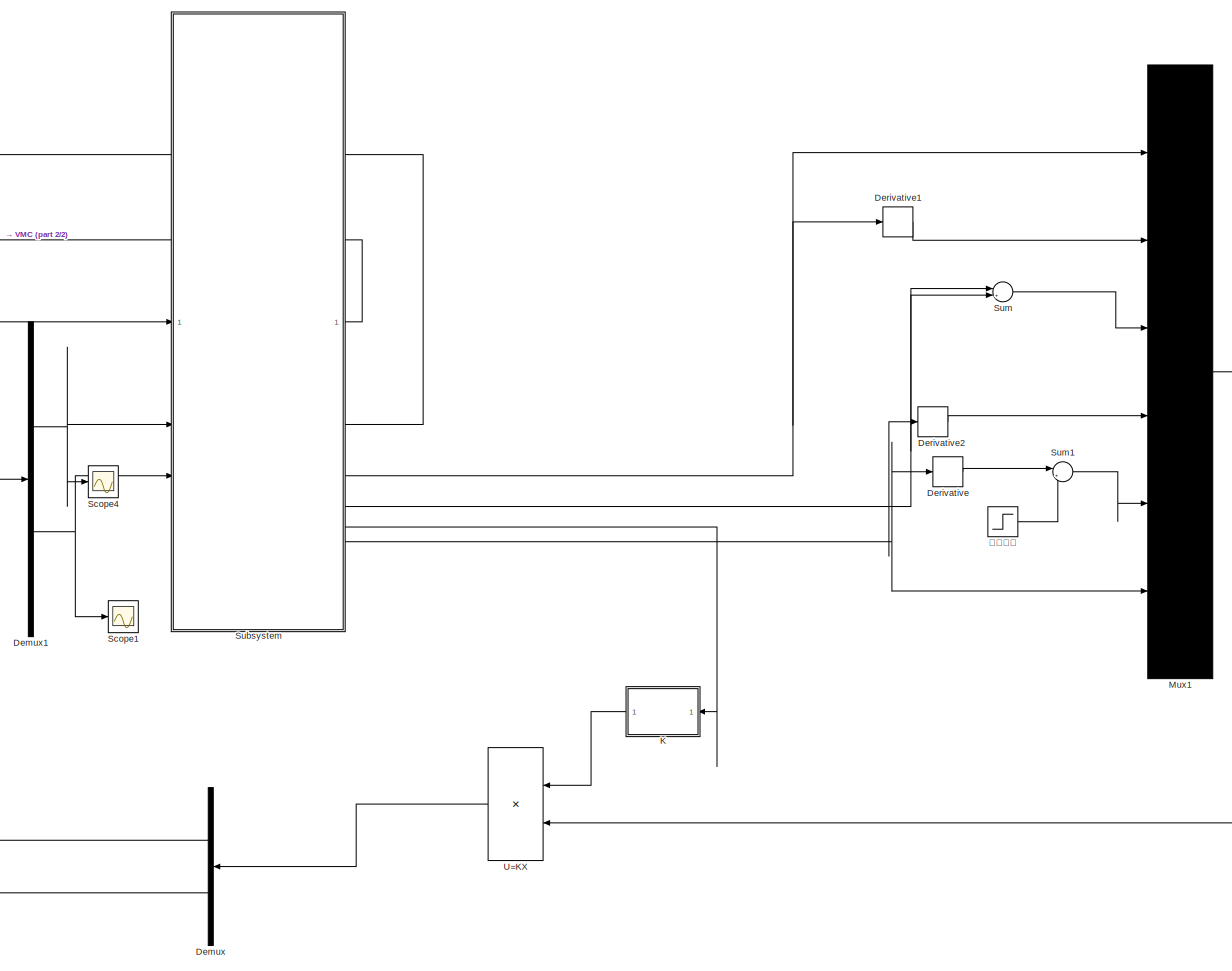
[diagram: root canvas - part 1/2, center side, full height]
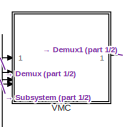
[diagram: root canvas - part 2/2, middle left region]
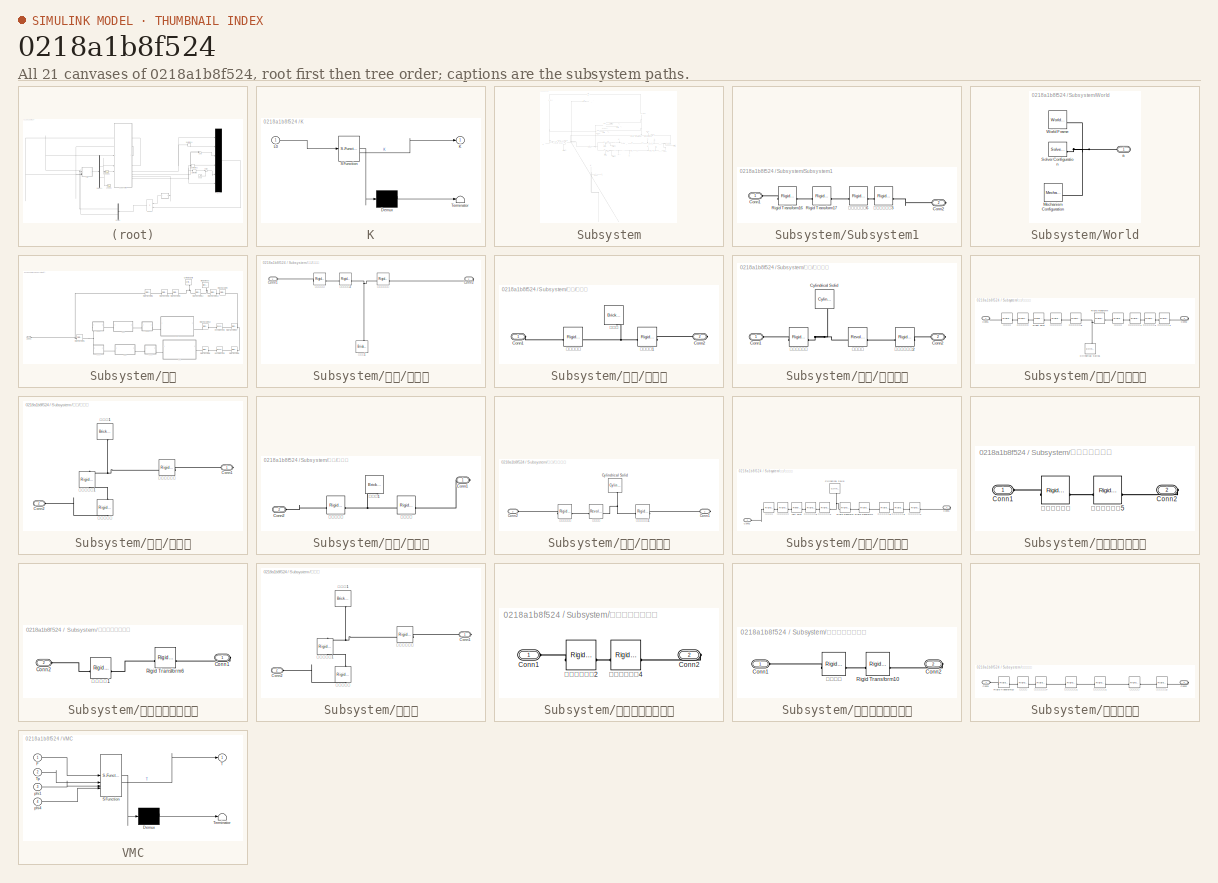
[diagram: thumbnail index - all 21 canvases of the model, root first then tree order]
MODEL slx_0218a1b8f524
KIND model
CONFIG AbsTol = 1e-3
CONFIG EnableMultiTasking = on
CONFIG FixedStep = 0.001
CONFIG MaxStep = auto
CONFIG MinStep = auto
CONFIG RelTol = 1e-3
CONFIG SampleTimeConstraint = Unconstrained
CONFIG SolverName = FixedStepAuto
CONFIG StartTime = 0.0
CONFIG StopTime = 10.0
BLOCK [Demux] Demux
  NameLocation = top
  Outputs = 2
BLOCK [Demux] Demux1
  Outputs = 2
BLOCK [Derivative] Derivative
BLOCK [Derivative] Derivative1
BLOCK [Derivative] Derivative2
BLOCK [SubSystem] K
  ErrorFcn = Stateflow.Translate.translate
  NameLocation = top
  PermitHierarchicalResolution = ExplicitOnly
  SFBlockType = MATLAB Function
  TreatAsAtomicUnit = on
BLOCK [Demux] K/ Demux 
  Outputs = 1
BLOCK [S-Function] K/ SFunction 
  EnableBusSupport = on
  FunctionName = sf_sfun
  PortCounts = [1 2]
  SFcnIsStateOwnerBlock = off
  SFunctionDeploymentMode = off
  Tag = Stateflow S-Function 2
BLOCK [Terminator] K/ Terminator 
BLOCK [Outport] K/K
BLOCK [Inport] K/L0
BLOCK [Mux] Mux1
  DisplayOption = bar
  Inputs = 6
BLOCK [Scope] Scope1
  Floating = off
  NumInputPorts = 1
  ScopeSpecificationString = Simulink.scopes.TimeScopeBlockCfg('CurrentConfiguration', extmgr.ConfigurationSet(extmgr.Configuration('Core','General UI',true),extmgr.Configuration('Core','Source UI',true),extmgr.Configuration('Sources','WiredSimulink',true,'DataLoggingVariableName','ScopeData1'),extmgr.Configuration('Visuals','Time Domain',true,'SerializedDisplays',{struct('MinYLimReal','-1.00000','MaxYLimReal','1.00000','YLab...<+1557ch>
BLOCK [Scope] Scope4
  Floating = off
  NumInputPorts = 1
  ScopeSpecificationString = Simulink.scopes.TimeScopeBlockCfg('CurrentConfiguration', extmgr.ConfigurationSet(extmgr.Configuration('Core','General UI',true),extmgr.Configuration('Core','Source UI',true),extmgr.Configuration('Sources','WiredSimulink',true,'DataLoggingVariableName','ScopeData4'),extmgr.Configuration('Visuals','Time Domain',true,'SerializedDisplays',{struct('MinYLimReal','-72.25518','MaxYLimReal','52.21487','YL...<+1633ch>
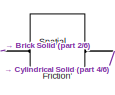
[diagram: Subsystem - part 1/6, top center region]
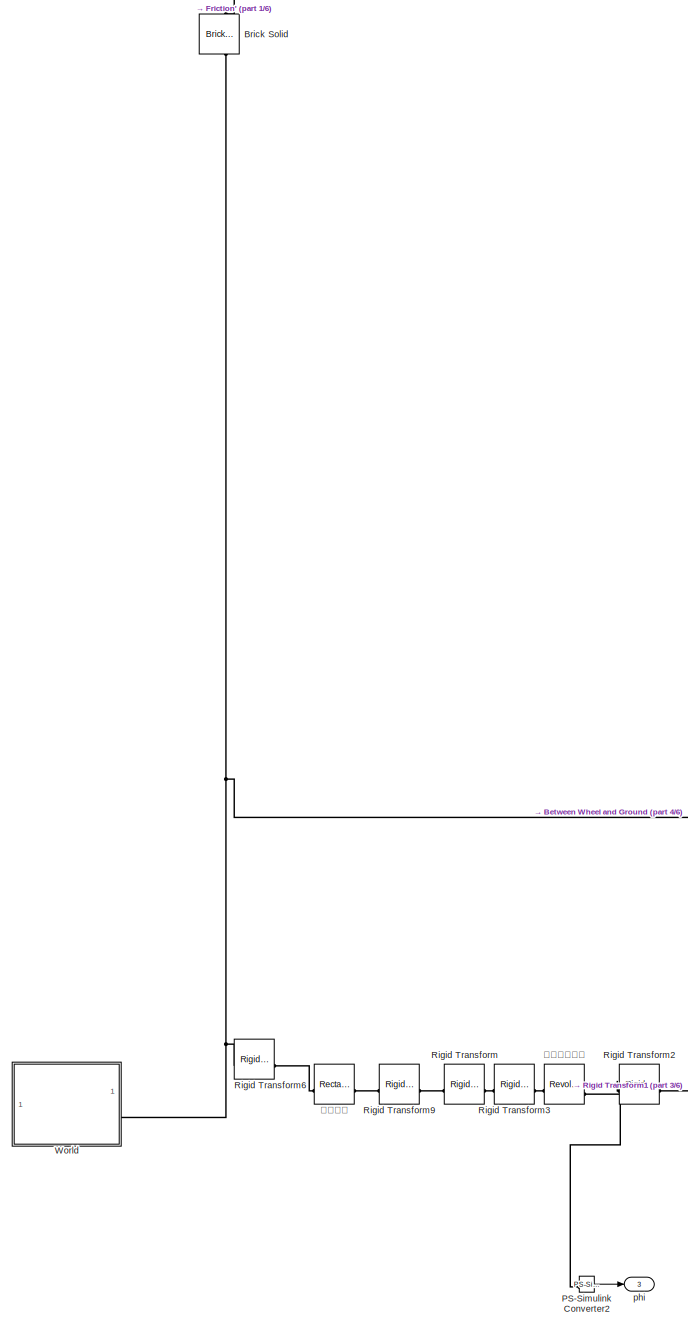
[diagram: Subsystem - part 2/6, top left region]
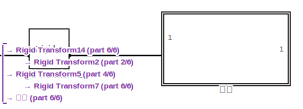
[diagram: Subsystem - part 3/6, top center region]
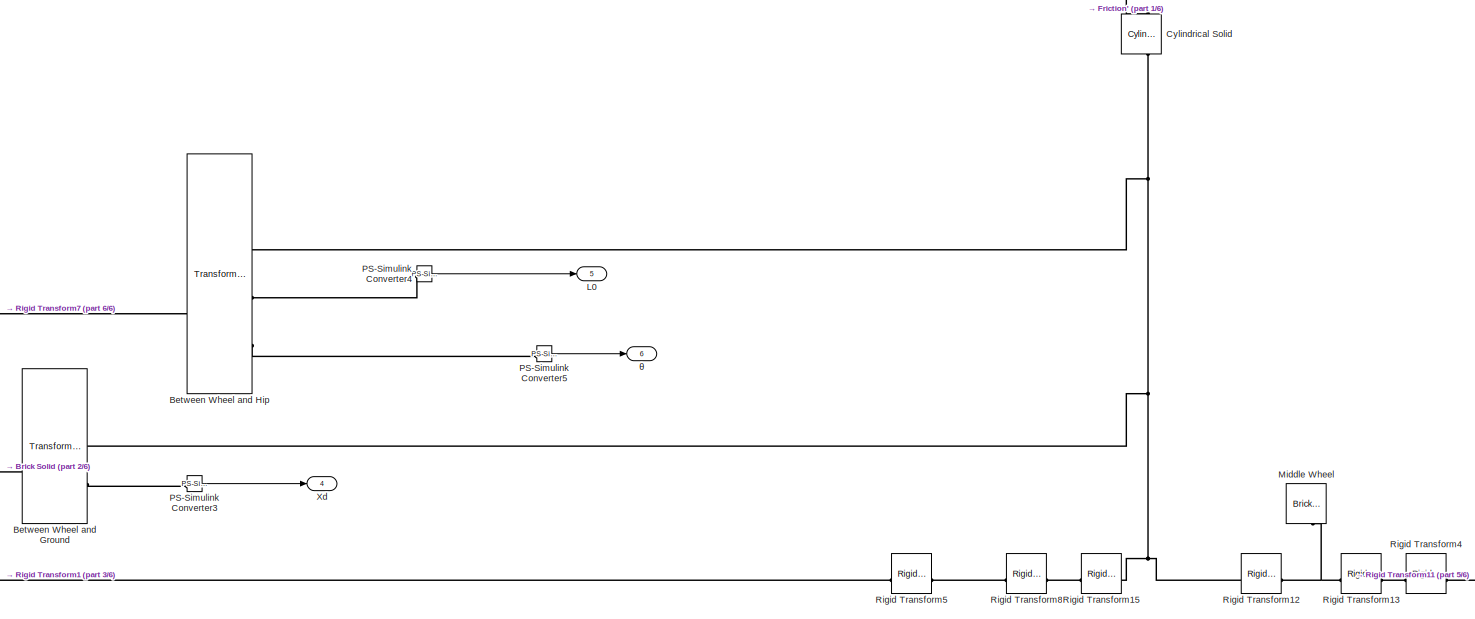
[diagram: Subsystem - part 4/6, top center region]
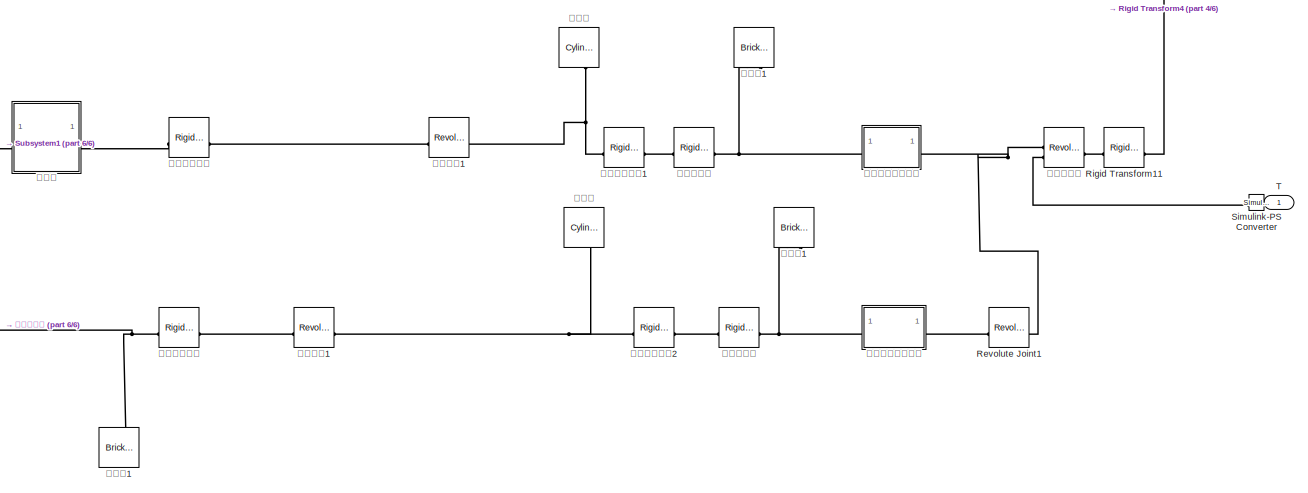
[diagram: Subsystem - part 5/6, middle right region]
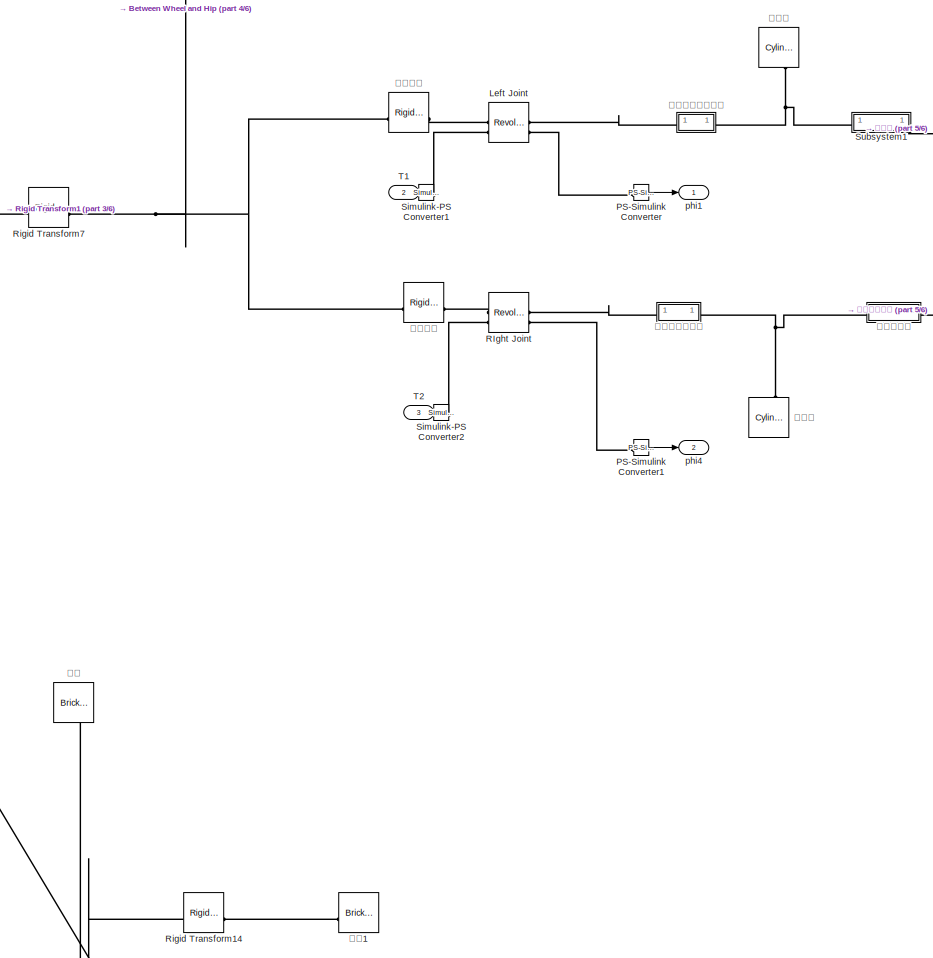
[diagram: Subsystem - part 6/6, central region]
BLOCK [SubSystem] Subsystem
BLOCK [Reference] Subsystem/Between Wheel and Ground  REF=sm_lib/Frames and
Transforms/Transform
Sensor
  SourceBlock = sm_lib/Frames and\nTransforms/Transform\nSensor
  SourceType = Transform\nSensor
BLOCK [Reference] Subsystem/Between Wheel and Hip  REF=sm_lib/Frames and
Transforms/Transform
Sensor
  SourceBlock = sm_lib/Frames and\nTransforms/Transform\nSensor
  SourceType = Transform\nSensor
BLOCK [Reference] Subsystem/Brick Solid  REF=sm_lib/Body Elements/Brick Solid
  NameLocation = left
  SourceBlock = sm_lib/Body Elements/Brick Solid
  SourceType = Brick Solid
BLOCK [Reference] Subsystem/Cylindrical Solid  REF=sm_lib/Body Elements/Cylindrical Solid
  NameLocation = left
  SourceBlock = sm_lib/Body Elements/Cylindrical Solid
  SourceType = Cylindrical Solid
BLOCK [Reference] Subsystem/Friction'  REF=sm_lib/Forces and
Torques/Spatial
Contact Force
  SourceBlock = sm_lib/Forces and\nTorques/Spatial\nContact Force
  SourceType = Spatial\nContact Force
BLOCK [Outport] Subsystem/L0
  Port = 5
BLOCK [Reference] Subsystem/Left Joint  REF=sm_lib/Joints/Revolute Joint
  SourceBlock = sm_lib/Joints/Revolute Joint
  SourceType = Revolute Joint
BLOCK [Reference] Subsystem/Middle Wheel  REF=sm_lib/Body Elements/Brick Solid
  NameLocation = left
  SourceBlock = sm_lib/Body Elements/Brick Solid
  SourceType = Brick Solid
BLOCK [Reference] Subsystem/PS-Simulink Converter  REF=nesl_utility/PS-Simulink
Converter
  SourceBlock = nesl_utility/PS-Simulink\nConverter
  SourceType = PS-Simulink\nConverter
BLOCK [Reference] Subsystem/PS-Simulink Converter1  REF=nesl_utility/PS-Simulink
Converter
  SourceBlock = nesl_utility/PS-Simulink\nConverter
  SourceType = PS-Simulink\nConverter
BLOCK [Reference] Subsystem/PS-Simulink Converter2  REF=nesl_utility/PS-Simulink
Converter
  SourceBlock = nesl_utility/PS-Simulink\nConverter
  SourceType = PS-Simulink\nConverter
BLOCK [Reference] Subsystem/PS-Simulink Converter3  REF=nesl_utility/PS-Simulink
Converter
  SourceBlock = nesl_utility/PS-Simulink\nConverter
  SourceType = PS-Simulink\nConverter
BLOCK [Reference] Subsystem/PS-Simulink Converter4  REF=nesl_utility/PS-Simulink
Converter
  SourceBlock = nesl_utility/PS-Simulink\nConverter
  SourceType = PS-Simulink\nConverter
BLOCK [Reference] Subsystem/PS-Simulink Converter5  REF=nesl_utility/PS-Simulink
Converter
  SourceBlock = nesl_utility/PS-Simulink\nConverter
  SourceType = PS-Simulink\nConverter
BLOCK [Reference] Subsystem/RIght Joint  REF=sm_lib/Joints/Revolute Joint
  SourceBlock = sm_lib/Joints/Revolute Joint
  SourceType = Revolute Joint
BLOCK [Reference] Subsystem/Revolute Joint1  REF=sm_lib/Joints/Revolute Joint
  SourceBlock = sm_lib/Joints/Revolute Joint
  SourceType = Revolute Joint
BLOCK [Reference] Subsystem/Rigid Transform  REF=sm_lib/Frames and
Transforms/Rigid
Transform
  SourceBlock = sm_lib/Frames and\nTransforms/Rigid\nTransform
  SourceType = Rigid\nTransform
BLOCK [Reference] Subsystem/Rigid Transform1  REF=sm_lib/Frames and
Transforms/Rigid
Transform
  SourceBlock = sm_lib/Frames and\nTransforms/Rigid\nTransform
  SourceType = Rigid\nTransform
BLOCK [Reference] Subsystem/Rigid Transform11  REF=sm_lib/Frames and
Transforms/Rigid
Transform
  SourceBlock = sm_lib/Frames and\nTransforms/Rigid\nTransform
  SourceType = Rigid\nTransform
BLOCK [Reference] Subsystem/Rigid Transform12  REF=sm_lib/Frames and
Transforms/Rigid
Transform
  SourceBlock = sm_lib/Frames and\nTransforms/Rigid\nTransform
  SourceType = Rigid\nTransform
BLOCK [Reference] Subsystem/Rigid Transform13  REF=sm_lib/Frames and
Transforms/Rigid
Transform
  SourceBlock = sm_lib/Frames and\nTransforms/Rigid\nTransform
  SourceType = Rigid\nTransform
BLOCK [Reference] Subsystem/Rigid Transform14  REF=sm_lib/Frames and
Transforms/Rigid
Transform
  NameLocation = top
  SourceBlock = sm_lib/Frames and\nTransforms/Rigid\nTransform
  SourceType = Rigid\nTransform
BLOCK [Reference] Subsystem/Rigid Transform15  REF=sm_lib/Frames and
Transforms/Rigid
Transform
  SourceBlock = sm_lib/Frames and\nTransforms/Rigid\nTransform
  SourceType = Rigid\nTransform
BLOCK [Reference] Subsystem/Rigid Transform2  REF=sm_lib/Frames and
Transforms/Rigid
Transform
  SourceBlock = sm_lib/Frames and\nTransforms/Rigid\nTransform
  SourceType = Rigid\nTransform
BLOCK [Reference] Subsystem/Rigid Transform3  REF=sm_lib/Frames and
Transforms/Rigid
Transform
  SourceBlock = sm_lib/Frames and\nTransforms/Rigid\nTransform
  SourceType = Rigid\nTransform
BLOCK [Reference] Subsystem/Rigid Transform4  REF=sm_lib/Frames and
Transforms/Rigid
Transform
  SourceBlock = sm_lib/Frames and\nTransforms/Rigid\nTransform
  SourceType = Rigid\nTransform
BLOCK [Reference] Subsystem/Rigid Transform5  REF=sm_lib/Frames and
Transforms/Rigid
Transform
  SourceBlock = sm_lib/Frames and\nTransforms/Rigid\nTransform
  SourceType = Rigid\nTransform
BLOCK [Reference] Subsystem/Rigid Transform6  REF=sm_lib/Frames and
Transforms/Rigid
Transform
  SourceBlock = sm_lib/Frames and\nTransforms/Rigid\nTransform
  SourceType = Rigid\nTransform
BLOCK [Reference] Subsystem/Rigid Transform7  REF=sm_lib/Frames and
Transforms/Rigid
Transform
  SourceBlock = sm_lib/Frames and\nTransforms/Rigid\nTransform
  SourceType = Rigid\nTransform
BLOCK [Reference] Subsystem/Rigid Transform8  REF=sm_lib/Frames and
Transforms/Rigid
Transform
  SourceBlock = sm_lib/Frames and\nTransforms/Rigid\nTransform
  SourceType = Rigid\nTransform
BLOCK [Reference] Subsystem/Rigid Transform9  REF=sm_lib/Frames and
Transforms/Rigid
Transform
  SourceBlock = sm_lib/Frames and\nTransforms/Rigid\nTransform
  SourceType = Rigid\nTransform
BLOCK [Reference] Subsystem/Simulink-PS Converter  REF=nesl_utility/Simulink-PS
Converter
  NameLocation = top
  SourceBlock = nesl_utility/Simulink-PS\nConverter
  SourceType = Simulink-PS\nConverter
BLOCK [Reference] Subsystem/Simulink-PS Converter1  REF=nesl_utility/Simulink-PS
Converter
  SourceBlock = nesl_utility/Simulink-PS\nConverter
  SourceType = Simulink-PS\nConverter
BLOCK [Reference] Subsystem/Simulink-PS Converter2  REF=nesl_utility/Simulink-PS
Converter
  SourceBlock = nesl_utility/Simulink-PS\nConverter
  SourceType = Simulink-PS\nConverter
BLOCK [SubSystem] Subsystem/Subsystem1
  NameLocation = right
BLOCK [PMIOPort] Subsystem/Subsystem1/Conn1
  Side = Left
BLOCK [PMIOPort] Subsystem/Subsystem1/Conn2
  Port = 2
  Side = Right
BLOCK [Reference] Subsystem/Subsystem1/Rigid Transform16  REF=sm_lib/Frames and
Transforms/Rigid
Transform
  SourceBlock = sm_lib/Frames and\nTransforms/Rigid\nTransform
  SourceType = Rigid\nTransform
BLOCK [Reference] Subsystem/Subsystem1/Rigid Transform17  REF=sm_lib/Frames and
Transforms/Rigid
Transform
  SourceBlock = sm_lib/Frames and\nTransforms/Rigid\nTransform
  SourceType = Rigid\nTransform
BLOCK [Reference] Subsystem/Subsystem1/关节骨头位置3  REF=sm_lib/Frames and
Transforms/Rigid
Transform
  NameLocation = right
  SourceBlock = sm_lib/Frames and\nTransforms/Rigid\nTransform
  SourceType = Rigid\nTransform
BLOCK [Reference] Subsystem/Subsystem1/关节骨头位置6  REF=sm_lib/Frames and
Transforms/Rigid
Transform
  SourceBlock = sm_lib/Frames and\nTransforms/Rigid\nTransform
  SourceType = Rigid\nTransform
BLOCK [Inport] Subsystem/T
  NameLocation = top
BLOCK [Inport] Subsystem/T1
  Port = 2
BLOCK [Inport] Subsystem/T2
  Port = 3
BLOCK [SubSystem] Subsystem/World
BLOCK [Reference] Subsystem/World/Mechanism Configuration  REF=sm_lib/Utilities/Mechanism
Configuration
  SourceBlock = sm_lib/Utilities/Mechanism\nConfiguration
  SourceType = Mechanism\nConfiguration
BLOCK [Reference] Subsystem/World/Solver Configuration  REF=nesl_utility/Solver
Configuration
  SourceBlock = nesl_utility/Solver\nConfiguration
  SourceType = Solver\nConfiguration
BLOCK [Reference] Subsystem/World/World Frame  REF=sm_lib/Frames and
Transforms/World Frame
  SourceBlock = sm_lib/Frames and\nTransforms/World Frame
  SourceType = World Frame
BLOCK [PMIOPort] Subsystem/World/a
  Side = Right
BLOCK [Outport] Subsystem/Xd
  Port = 4
BLOCK [Outport] Subsystem/phi
  Port = 3
BLOCK [Outport] Subsystem/phi1
BLOCK [Outport] Subsystem/phi4
  Port = 2
BLOCK [Outport] Subsystem/θ
  Port = 6
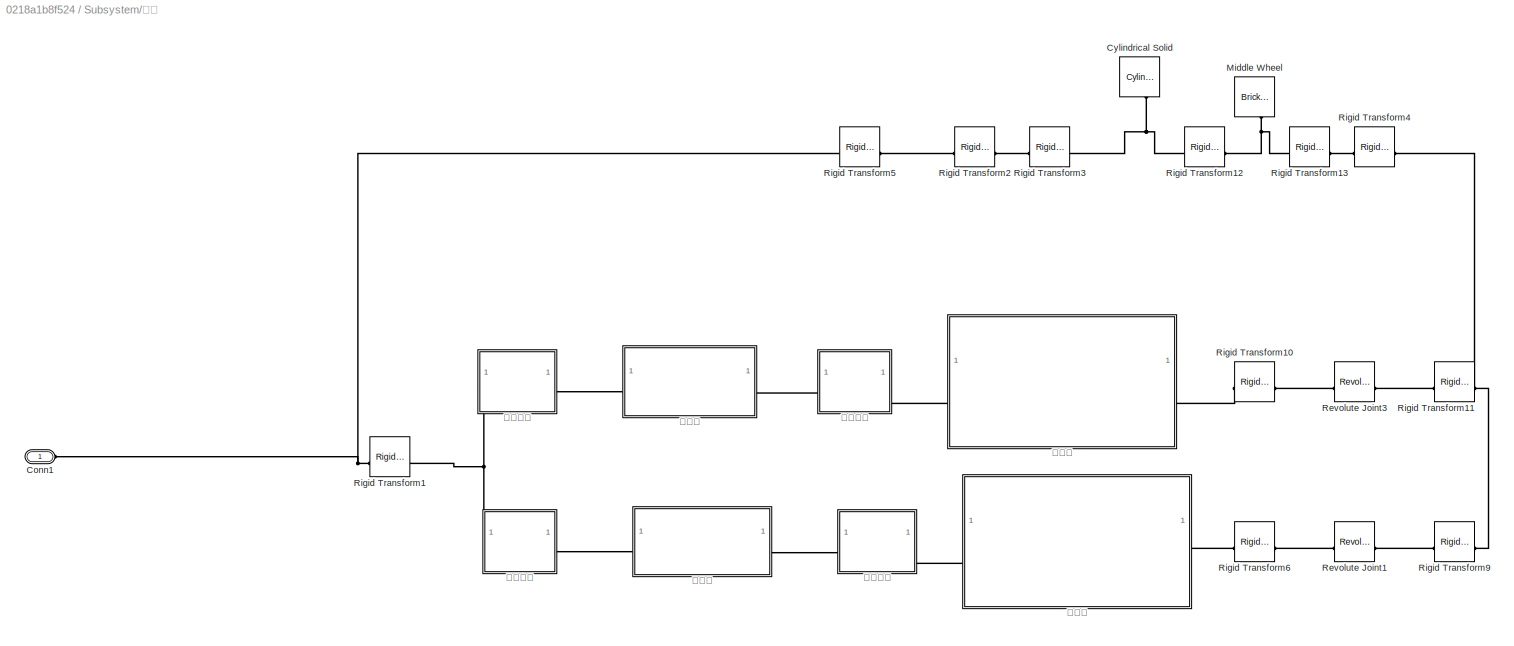
BLOCK [SubSystem] Subsystem/前腿
BLOCK [PMIOPort] Subsystem/前腿/Conn1
  Side = Left
BLOCK [Reference] Subsystem/前腿/Cylindrical Solid  REF=sm_lib/Body Elements/Cylindrical Solid
  NameLocation = left
  SourceBlock = sm_lib/Body Elements/Cylindrical Solid
  SourceType = Cylindrical Solid
BLOCK [Reference] Subsystem/前腿/Middle Wheel  REF=sm_lib/Body Elements/Brick Solid
  NameLocation = left
  SourceBlock = sm_lib/Body Elements/Brick Solid
  SourceType = Brick Solid
BLOCK [Reference] Subsystem/前腿/Revolute Joint1  REF=sm_lib/Joints/Revolute Joint
  SourceBlock = sm_lib/Joints/Revolute Joint
  SourceType = Revolute Joint
BLOCK [Reference] Subsystem/前腿/Revolute Joint3  REF=sm_lib/Joints/Revolute Joint
  SourceBlock = sm_lib/Joints/Revolute Joint
  SourceType = Revolute Joint
BLOCK [Reference] Subsystem/前腿/Rigid Transform1  REF=sm_lib/Frames and
Transforms/Rigid
Transform
  SourceBlock = sm_lib/Frames and\nTransforms/Rigid\nTransform
  SourceType = Rigid\nTransform
BLOCK [Reference] Subsystem/前腿/Rigid Transform10  REF=sm_lib/Frames and
Transforms/Rigid
Transform
  SourceBlock = sm_lib/Frames and\nTransforms/Rigid\nTransform
  SourceType = Rigid\nTransform
BLOCK [Reference] Subsystem/前腿/Rigid Transform11  REF=sm_lib/Frames and
Transforms/Rigid
Transform
  SourceBlock = sm_lib/Frames and\nTransforms/Rigid\nTransform
  SourceType = Rigid\nTransform
BLOCK [Reference] Subsystem/前腿/Rigid Transform12  REF=sm_lib/Frames and
Transforms/Rigid
Transform
  SourceBlock = sm_lib/Frames and\nTransforms/Rigid\nTransform
  SourceType = Rigid\nTransform
BLOCK [Reference] Subsystem/前腿/Rigid Transform13  REF=sm_lib/Frames and
Transforms/Rigid
Transform
  SourceBlock = sm_lib/Frames and\nTransforms/Rigid\nTransform
  SourceType = Rigid\nTransform
BLOCK [Reference] Subsystem/前腿/Rigid Transform2  REF=sm_lib/Frames and
Transforms/Rigid
Transform
  SourceBlock = sm_lib/Frames and\nTransforms/Rigid\nTransform
  SourceType = Rigid\nTransform
BLOCK [Reference] Subsystem/前腿/Rigid Transform3  REF=sm_lib/Frames and
Transforms/Rigid
Transform
  SourceBlock = sm_lib/Frames and\nTransforms/Rigid\nTransform
  SourceType = Rigid\nTransform
BLOCK [Reference] Subsystem/前腿/Rigid Transform4  REF=sm_lib/Frames and
Transforms/Rigid
Transform
  SourceBlock = sm_lib/Frames and\nTransforms/Rigid\nTransform
  SourceType = Rigid\nTransform
BLOCK [Reference] Subsystem/前腿/Rigid Transform5  REF=sm_lib/Frames and
Transforms/Rigid
Transform
  SourceBlock = sm_lib/Frames and\nTransforms/Rigid\nTransform
  SourceType = Rigid\nTransform
BLOCK [Reference] Subsystem/前腿/Rigid Transform6  REF=sm_lib/Frames and
Transforms/Rigid
Transform
  SourceBlock = sm_lib/Frames and\nTransforms/Rigid\nTransform
  SourceType = Rigid\nTransform
BLOCK [Reference] Subsystem/前腿/Rigid Transform9  REF=sm_lib/Frames and
Transforms/Rigid
Transform
  SourceBlock = sm_lib/Frames and\nTransforms/Rigid\nTransform
  SourceType = Rigid\nTransform
BLOCK [SubSystem] Subsystem/前腿/右大腿
BLOCK [PMIOPort] Subsystem/前腿/右大腿/Conn1
  Side = Left
BLOCK [PMIOPort] Subsystem/前腿/右大腿/Conn2
  Port = 2
  Side = Right
BLOCK [Reference] Subsystem/前腿/右大腿/右大腿1  REF=sm_lib/Body Elements/Brick Solid
  NameLocation = right
  SourceBlock = sm_lib/Body Elements/Brick Solid
  SourceType = Brick Solid
BLOCK [Reference] Subsystem/前腿/右大腿/右大腿位置  REF=sm_lib/Frames and
Transforms/Rigid
Transform
  SourceBlock = sm_lib/Frames and\nTransforms/Rigid\nTransform
  SourceType = Rigid\nTransform
BLOCK [Reference] Subsystem/前腿/右大腿/右膝关节位置  REF=sm_lib/Frames and
Transforms/Rigid
Transform
  NameLocation = right
  SourceBlock = sm_lib/Frames and\nTransforms/Rigid\nTransform
  SourceType = Rigid\nTransform
BLOCK [Reference] Subsystem/前腿/右大腿/左大腿位置2  REF=sm_lib/Frames and
Transforms/Rigid
Transform
  SourceBlock = sm_lib/Frames and\nTransforms/Rigid\nTransform
  SourceType = Rigid\nTransform
BLOCK [SubSystem] Subsystem/前腿/右小腿
BLOCK [PMIOPort] Subsystem/前腿/右小腿/Conn1
  Side = Left
BLOCK [PMIOPort] Subsystem/前腿/右小腿/Conn2
  Port = 2
  Side = Right
BLOCK [Reference] Subsystem/前腿/右小腿/右小腿  REF=sm_lib/Body Elements/Brick Solid
  NameLocation = left
  SourceBlock = sm_lib/Body Elements/Brick Solid
  SourceType = Brick Solid
BLOCK [Reference] Subsystem/前腿/右小腿/右小腿末1  REF=sm_lib/Frames and
Transforms/Rigid
Transform
  SourceBlock = sm_lib/Frames and\nTransforms/Rigid\nTransform
  SourceType = Rigid\nTransform
BLOCK [Reference] Subsystem/前腿/右小腿/右小腿质心  REF=sm_lib/Frames and
Transforms/Rigid
Transform
  SourceBlock = sm_lib/Frames and\nTransforms/Rigid\nTransform
  SourceType = Rigid\nTransform
BLOCK [SubSystem] Subsystem/前腿/右膝关节
BLOCK [PMIOPort] Subsystem/前腿/右膝关节/Conn1
  Side = Left
BLOCK [PMIOPort] Subsystem/前腿/右膝关节/Conn2
  Port = 2
  Side = Right
BLOCK [Reference] Subsystem/前腿/右膝关节/Cylindrical Solid  REF=sm_lib/Body Elements/Cylindrical Solid
  NameLocation = left
  SourceBlock = sm_lib/Body Elements/Cylindrical Solid
  SourceType = Cylindrical Solid
BLOCK [Reference] Subsystem/前腿/右膝关节/右膝关节  REF=sm_lib/Joints/Revolute Joint
  SourceBlock = sm_lib/Joints/Revolute Joint
  SourceType = Revolute Joint
BLOCK [Reference] Subsystem/前腿/右膝关节/坐标轴变换右2  REF=sm_lib/Frames and
Transforms/Rigid
Transform
  SourceBlock = sm_lib/Frames and\nTransforms/Rigid\nTransform
  SourceType = Rigid\nTransform
BLOCK [Reference] Subsystem/前腿/右膝关节/旋转右坐标轴  REF=sm_lib/Frames and
Transforms/Rigid
Transform
  SourceBlock = sm_lib/Frames and\nTransforms/Rigid\nTransform
  SourceType = Rigid\nTransform
BLOCK [SubSystem] Subsystem/前腿/右髋关节
BLOCK [PMIOPort] Subsystem/前腿/右髋关节/Conn1
  Side = Left
BLOCK [PMIOPort] Subsystem/前腿/右髋关节/Conn2
  Port = 2
  Side = Right
BLOCK [Reference] Subsystem/前腿/右髋关节/Cylindrical Solid1  REF=sm_lib/Body Elements/Cylindrical Solid
  NameLocation = right
  SourceBlock = sm_lib/Body Elements/Cylindrical Solid
  SourceType = Cylindrical Solid
BLOCK [Reference] Subsystem/前腿/右髋关节/RIght Joint  REF=sm_lib/Joints/Revolute Joint
  SourceBlock = sm_lib/Joints/Revolute Joint
  SourceType = Revolute Joint
BLOCK [Reference] Subsystem/前腿/右髋关节/Rigid Transform  REF=sm_lib/Frames and
Transforms/Rigid
Transform
  SourceBlock = sm_lib/Frames and\nTransforms/Rigid\nTransform
  SourceType = Rigid\nTransform
BLOCK [Reference] Subsystem/前腿/右髋关节/关节骨头位置  REF=sm_lib/Frames and
Transforms/Rigid
Transform
  SourceBlock = sm_lib/Frames and\nTransforms/Rigid\nTransform
  SourceType = Rigid\nTransform
BLOCK [Reference] Subsystem/前腿/右髋关节/关节骨头位置1  REF=sm_lib/Frames and
Transforms/Rigid
Transform
  SourceBlock = sm_lib/Frames and\nTransforms/Rigid\nTransform
  SourceType = Rigid\nTransform
BLOCK [Reference] Subsystem/前腿/右髋关节/关节骨头位置5  REF=sm_lib/Frames and
Transforms/Rigid
Transform
  SourceBlock = sm_lib/Frames and\nTransforms/Rigid\nTransform
  SourceType = Rigid\nTransform
BLOCK [Reference] Subsystem/前腿/右髋关节/关节骨头位置7  REF=sm_lib/Frames and
Transforms/Rigid
Transform
  SourceBlock = sm_lib/Frames and\nTransforms/Rigid\nTransform
  SourceType = Rigid\nTransform
BLOCK [Reference] Subsystem/前腿/右髋关节/右髋位置  REF=sm_lib/Frames and
Transforms/Rigid
Transform
  SourceBlock = sm_lib/Frames and\nTransforms/Rigid\nTransform
  SourceType = Rigid\nTransform
BLOCK [Reference] Subsystem/前腿/右髋关节/向前移动  REF=sm_lib/Frames and
Transforms/Rigid
Transform
  SourceBlock = sm_lib/Frames and\nTransforms/Rigid\nTransform
  SourceType = Rigid\nTransform
BLOCK [Reference] Subsystem/前腿/右髋关节/坐标轴变换右  REF=sm_lib/Frames and
Transforms/Rigid
Transform
  SourceBlock = sm_lib/Frames and\nTransforms/Rigid\nTransform
  SourceType = Rigid\nTransform
BLOCK [Reference] Subsystem/前腿/右髋关节/坐标轴变换右1  REF=sm_lib/Frames and
Transforms/Rigid
Transform
  SourceBlock = sm_lib/Frames and\nTransforms/Rigid\nTransform
  SourceType = Rigid\nTransform
BLOCK [SubSystem] Subsystem/前腿/左大腿
BLOCK [PMIOPort] Subsystem/前腿/左大腿/Conn1
  Side = Right
BLOCK [PMIOPort] Subsystem/前腿/左大腿/Conn2
  Port = 2
  Side = Left
BLOCK [Reference] Subsystem/前腿/左大腿/左大腿1  REF=sm_lib/Body Elements/Brick Solid
  NameLocation = left
  SourceBlock = sm_lib/Body Elements/Brick Solid
  SourceType = Brick Solid
BLOCK [Reference] Subsystem/前腿/左大腿/左大腿位置  REF=sm_lib/Frames and
Transforms/Rigid
Transform
  NameLocation = right
  SourceBlock = sm_lib/Frames and\nTransforms/Rigid\nTransform
  SourceType = Rigid\nTransform
BLOCK [Reference] Subsystem/前腿/左大腿/左大腿位置1  REF=sm_lib/Frames and
Transforms/Rigid
Transform
  NameLocation = right
  SourceBlock = sm_lib/Frames and\nTransforms/Rigid\nTransform
  SourceType = Rigid\nTransform
BLOCK [Reference] Subsystem/前腿/左大腿/左膝关节位置  REF=sm_lib/Frames and
Transforms/Rigid
Transform
  SourceBlock = sm_lib/Frames and\nTransforms/Rigid\nTransform
  SourceType = Rigid\nTransform
BLOCK [SubSystem] Subsystem/前腿/左小腿
BLOCK [PMIOPort] Subsystem/前腿/左小腿/Conn1
  Side = Right
BLOCK [PMIOPort] Subsystem/前腿/左小腿/Conn2
  Port = 2
  Side = Left
BLOCK [Reference] Subsystem/前腿/左小腿/左小腿1  REF=sm_lib/Body Elements/Brick Solid
  NameLocation = left
  SourceBlock = sm_lib/Body Elements/Brick Solid
  SourceType = Brick Solid
BLOCK [Reference] Subsystem/前腿/左小腿/左小腿末  REF=sm_lib/Frames and
Transforms/Rigid
Transform
  SourceBlock = sm_lib/Frames and\nTransforms/Rigid\nTransform
  SourceType = Rigid\nTransform
BLOCK [Reference] Subsystem/前腿/左小腿/左小腿质心  REF=sm_lib/Frames and
Transforms/Rigid
Transform
  SourceBlock = sm_lib/Frames and\nTransforms/Rigid\nTransform
  SourceType = Rigid\nTransform
BLOCK [SubSystem] Subsystem/前腿/左膝关节
BLOCK [PMIOPort] Subsystem/前腿/左膝关节/Conn1
  Side = Right
BLOCK [PMIOPort] Subsystem/前腿/左膝关节/Conn2
  Port = 2
  Side = Left
BLOCK [Reference] Subsystem/前腿/左膝关节/Cylindrical Solid  REF=sm_lib/Body Elements/Cylindrical Solid
  NameLocation = left
  SourceBlock = sm_lib/Body Elements/Cylindrical Solid
  SourceType = Cylindrical Solid
BLOCK [Reference] Subsystem/前腿/左膝关节/坐标轴变换左1  REF=sm_lib/Frames and
Transforms/Rigid
Transform
  SourceBlock = sm_lib/Frames and\nTransforms/Rigid\nTransform
  SourceType = Rigid\nTransform
BLOCK [Reference] Subsystem/前腿/左膝关节/左膝关节  REF=sm_lib/Joints/Revolute Joint
  SourceBlock = sm_lib/Joints/Revolute Joint
  SourceType = Revolute Joint
BLOCK [Reference] Subsystem/前腿/左膝关节/旋转左坐标轴  REF=sm_lib/Frames and
Transforms/Rigid
Transform
  SourceBlock = sm_lib/Frames and\nTransforms/Rigid\nTransform
  SourceType = Rigid\nTransform
BLOCK [SubSystem] Subsystem/前腿/左髋关节
BLOCK [PMIOPort] Subsystem/前腿/左髋关节/Conn1
  Side = Right
BLOCK [PMIOPort] Subsystem/前腿/左髋关节/Conn2
  Port = 2
  Side = Left
BLOCK [Reference] Subsystem/前腿/左髋关节/Cylindrical Solid  REF=sm_lib/Body Elements/Cylindrical Solid
  NameLocation = left
  SourceBlock = sm_lib/Body Elements/Cylindrical Solid
  SourceType = Cylindrical Solid
BLOCK [Reference] Subsystem/前腿/左髋关节/Left Joint  REF=sm_lib/Joints/Revolute Joint
  SourceBlock = sm_lib/Joints/Revolute Joint
  SourceType = Revolute Joint
BLOCK [Reference] Subsystem/前腿/左髋关节/Rigid Transform  REF=sm_lib/Frames and
Transforms/Rigid
Transform
  SourceBlock = sm_lib/Frames and\nTransforms/Rigid\nTransform
  SourceType = Rigid\nTransform
BLOCK [Reference] Subsystem/前腿/左髋关节/Rigid Transform1  REF=sm_lib/Frames and
Transforms/Rigid
Transform
  SourceBlock = sm_lib/Frames and\nTransforms/Rigid\nTransform
  SourceType = Rigid\nTransform
BLOCK [Reference] Subsystem/前腿/左髋关节/关节骨头位置2  REF=sm_lib/Frames and
Transforms/Rigid
Transform
  SourceBlock = sm_lib/Frames and\nTransforms/Rigid\nTransform
  SourceType = Rigid\nTransform
BLOCK [Reference] Subsystem/前腿/左髋关节/关节骨头位置3  REF=sm_lib/Frames and
Transforms/Rigid
Transform
  SourceBlock = sm_lib/Frames and\nTransforms/Rigid\nTransform
  SourceType = Rigid\nTransform
BLOCK [Reference] Subsystem/前腿/左髋关节/关节骨头位置4  REF=sm_lib/Frames and
Transforms/Rigid
Transform
  SourceBlock = sm_lib/Frames and\nTransforms/Rigid\nTransform
  SourceType = Rigid\nTransform
BLOCK [Reference] Subsystem/前腿/左髋关节/关节骨头位置6  REF=sm_lib/Frames and
Transforms/Rigid
Transform
  SourceBlock = sm_lib/Frames and\nTransforms/Rigid\nTransform
  SourceType = Rigid\nTransform
BLOCK [Reference] Subsystem/前腿/左髋关节/坐标轴变换左  REF=sm_lib/Frames and
Transforms/Rigid
Transform
  SourceBlock = sm_lib/Frames and\nTransforms/Rigid\nTransform
  SourceType = Rigid\nTransform
BLOCK [Reference] Subsystem/前腿/左髋关节/坐标轴变换左1  REF=sm_lib/Frames and
Transforms/Rigid
Transform
  SourceBlock = sm_lib/Frames and\nTransforms/Rigid\nTransform
  SourceType = Rigid\nTransform
BLOCK [Reference] Subsystem/前腿/左髋关节/左髋位置  REF=sm_lib/Frames and
Transforms/Rigid
Transform
  SourceBlock = sm_lib/Frames and\nTransforms/Rigid\nTransform
  SourceType = Rigid\nTransform
BLOCK [Reference] Subsystem/前腿足关节  REF=sm_lib/Joints/Revolute Joint
  SourceBlock = sm_lib/Joints/Revolute Joint
  SourceType = Revolute Joint
BLOCK [Reference] Subsystem/右大腿1  REF=sm_lib/Body Elements/Brick Solid
  NameLocation = right
  SourceBlock = sm_lib/Body Elements/Brick Solid
  SourceType = Brick Solid
BLOCK [Reference] Subsystem/右小腿1  REF=sm_lib/Body Elements/Brick Solid
  NameLocation = left
  SourceBlock = sm_lib/Body Elements/Brick Solid
  SourceType = Brick Solid
BLOCK [Reference] Subsystem/右小腿质心  REF=sm_lib/Frames and
Transforms/Rigid
Transform
  SourceBlock = sm_lib/Frames and\nTransforms/Rigid\nTransform
  SourceType = Rigid\nTransform
BLOCK [Reference] Subsystem/右胯骨  REF=sm_lib/Body Elements/Cylindrical Solid
  NameLocation = right
  SourceBlock = sm_lib/Body Elements/Cylindrical Solid
  SourceType = Cylindrical Solid
BLOCK [SubSystem] Subsystem/右胯骨位置变化
BLOCK [PMIOPort] Subsystem/右胯骨位置变化/Conn1
  Side = Left
BLOCK [PMIOPort] Subsystem/右胯骨位置变化/Conn2
  Port = 2
  Side = Right
BLOCK [Reference] Subsystem/右胯骨位置变化/关节骨头位置  REF=sm_lib/Frames and
Transforms/Rigid
Transform
  SourceBlock = sm_lib/Frames and\nTransforms/Rigid\nTransform
  SourceType = Rigid\nTransform
BLOCK [Reference] Subsystem/右胯骨位置变化/关节骨头位置5  REF=sm_lib/Frames and
Transforms/Rigid
Transform
  SourceBlock = sm_lib/Frames and\nTransforms/Rigid\nTransform
  SourceType = Rigid\nTransform
BLOCK [Reference] Subsystem/右膝关节1  REF=sm_lib/Joints/Revolute Joint
  SourceBlock = sm_lib/Joints/Revolute Joint
  SourceType = Revolute Joint
BLOCK [Reference] Subsystem/右膝关节位置  REF=sm_lib/Frames and
Transforms/Rigid
Transform
  NameLocation = right
  SourceBlock = sm_lib/Frames and\nTransforms/Rigid\nTransform
  SourceType = Rigid\nTransform
BLOCK [Reference] Subsystem/右膝骨  REF=sm_lib/Body Elements/Cylindrical Solid
  NameLocation = left
  SourceBlock = sm_lib/Body Elements/Cylindrical Solid
  SourceType = Cylindrical Solid
BLOCK [SubSystem] Subsystem/右足关节位置变化
BLOCK [PMIOPort] Subsystem/右足关节位置变化/Conn1
  Side = Right
BLOCK [PMIOPort] Subsystem/右足关节位置变化/Conn2
  Port = 2
  Side = Left
BLOCK [Reference] Subsystem/右足关节位置变化/Rigid Transform6  REF=sm_lib/Frames and
Transforms/Rigid
Transform
  SourceBlock = sm_lib/Frames and\nTransforms/Rigid\nTransform
  SourceType = Rigid\nTransform
BLOCK [Reference] Subsystem/右足关节位置变化/右小腿末1  REF=sm_lib/Frames and
Transforms/Rigid
Transform
  SourceBlock = sm_lib/Frames and\nTransforms/Rigid\nTransform
  SourceType = Rigid\nTransform
BLOCK [Reference] Subsystem/右髋位置  REF=sm_lib/Frames and
Transforms/Rigid
Transform
  SourceBlock = sm_lib/Frames and\nTransforms/Rigid\nTransform
  SourceType = Rigid\nTransform
BLOCK [Reference] Subsystem/坐标轴变换右2  REF=sm_lib/Frames and
Transforms/Rigid
Transform
  SourceBlock = sm_lib/Frames and\nTransforms/Rigid\nTransform
  SourceType = Rigid\nTransform
BLOCK [Reference] Subsystem/坐标轴变换左1  REF=sm_lib/Frames and
Transforms/Rigid
Transform
  SourceBlock = sm_lib/Frames and\nTransforms/Rigid\nTransform
  SourceType = Rigid\nTransform
BLOCK [SubSystem] Subsystem/左大腿
BLOCK [PMIOPort] Subsystem/左大腿/Conn1
  Side = Right
BLOCK [PMIOPort] Subsystem/左大腿/Conn2
  Port = 2
  Side = Left
BLOCK [Reference] Subsystem/左大腿/左大腿1  REF=sm_lib/Body Elements/Brick Solid
  NameLocation = left
  SourceBlock = sm_lib/Body Elements/Brick Solid
  SourceType = Brick Solid
BLOCK [Reference] Subsystem/左大腿/左大腿位置  REF=sm_lib/Frames and
Transforms/Rigid
Transform
  NameLocation = right
  SourceBlock = sm_lib/Frames and\nTransforms/Rigid\nTransform
  SourceType = Rigid\nTransform
BLOCK [Reference] Subsystem/左大腿/左大腿位置1  REF=sm_lib/Frames and
Transforms/Rigid
Transform
  NameLocation = right
  SourceBlock = sm_lib/Frames and\nTransforms/Rigid\nTransform
  SourceType = Rigid\nTransform
BLOCK [Reference] Subsystem/左大腿/左膝关节位置  REF=sm_lib/Frames and
Transforms/Rigid
Transform
  SourceBlock = sm_lib/Frames and\nTransforms/Rigid\nTransform
  SourceType = Rigid\nTransform
BLOCK [Reference] Subsystem/左小腿1  REF=sm_lib/Body Elements/Brick Solid
  NameLocation = left
  SourceBlock = sm_lib/Body Elements/Brick Solid
  SourceType = Brick Solid
BLOCK [Reference] Subsystem/左小腿质心  REF=sm_lib/Frames and
Transforms/Rigid
Transform
  SourceBlock = sm_lib/Frames and\nTransforms/Rigid\nTransform
  SourceType = Rigid\nTransform
BLOCK [Reference] Subsystem/左胯骨  REF=sm_lib/Body Elements/Cylindrical Solid
  NameLocation = left
  SourceBlock = sm_lib/Body Elements/Cylindrical Solid
  SourceType = Cylindrical Solid
BLOCK [SubSystem] Subsystem/左胯骨头位置变化
BLOCK [PMIOPort] Subsystem/左胯骨头位置变化/Conn1
  Side = Left
BLOCK [PMIOPort] Subsystem/左胯骨头位置变化/Conn2
  Port = 2
  Side = Right
BLOCK [Reference] Subsystem/左胯骨头位置变化/关节骨头位置2  REF=sm_lib/Frames and
Transforms/Rigid
Transform
  SourceBlock = sm_lib/Frames and\nTransforms/Rigid\nTransform
  SourceType = Rigid\nTransform
BLOCK [Reference] Subsystem/左胯骨头位置变化/关节骨头位置4  REF=sm_lib/Frames and
Transforms/Rigid
Transform
  SourceBlock = sm_lib/Frames and\nTransforms/Rigid\nTransform
  SourceType = Rigid\nTransform
BLOCK [Reference] Subsystem/左膝关节1  REF=sm_lib/Joints/Revolute Joint
  SourceBlock = sm_lib/Joints/Revolute Joint
  SourceType = Revolute Joint
BLOCK [Reference] Subsystem/左膝骨  REF=sm_lib/Body Elements/Cylindrical Solid
  NameLocation = left
  SourceBlock = sm_lib/Body Elements/Cylindrical Solid
  SourceType = Cylindrical Solid
BLOCK [SubSystem] Subsystem/左足关节位置变化
BLOCK [PMIOPort] Subsystem/左足关节位置变化/Conn1
  Side = Left
BLOCK [PMIOPort] Subsystem/左足关节位置变化/Conn2
  Port = 2
  Side = Right
BLOCK [Reference] Subsystem/左足关节位置变化/Rigid Transform10  REF=sm_lib/Frames and
Transforms/Rigid
Transform
  SourceBlock = sm_lib/Frames and\nTransforms/Rigid\nTransform
  SourceType = Rigid\nTransform
BLOCK [Reference] Subsystem/左足关节位置变化/左小腿末  REF=sm_lib/Frames and
Transforms/Rigid
Transform
  SourceBlock = sm_lib/Frames and\nTransforms/Rigid\nTransform
  SourceType = Rigid\nTransform
BLOCK [Reference] Subsystem/左髋位置  REF=sm_lib/Frames and
Transforms/Rigid
Transform
  NameLocation = left
  SourceBlock = sm_lib/Frames and\nTransforms/Rigid\nTransform
  SourceType = Rigid\nTransform
BLOCK [Reference] Subsystem/旋转左坐标轴  REF=sm_lib/Frames and
Transforms/Rigid
Transform
  SourceBlock = sm_lib/Frames and\nTransforms/Rigid\nTransform
  SourceType = Rigid\nTransform
BLOCK [Reference] Subsystem/机体  REF=sm_lib/Body Elements/Brick Solid
  NameLocation = left
  SourceBlock = sm_lib/Body Elements/Brick Solid
  SourceType = Brick Solid
BLOCK [Reference] Subsystem/机体1  REF=sm_lib/Body Elements/Brick Solid
  NameLocation = top
  SourceBlock = sm_lib/Body Elements/Brick Solid
  SourceType = Brick Solid
BLOCK [Reference] Subsystem/机体倾斜关节  REF=sm_lib/Joints/Revolute Joint
  SourceBlock = sm_lib/Joints/Revolute Joint
  SourceType = Revolute Joint
BLOCK [Reference] Subsystem/矩形关节  REF=sm_lib/Joints/Rectangular
Joint
  SourceBlock = sm_lib/Joints/Rectangular\nJoint
  SourceType = Rectangular\nJoint
BLOCK [SubSystem] Subsystem/膝关节定位
BLOCK [PMIOPort] Subsystem/膝关节定位/Conn1
  Side = Left
BLOCK [PMIOPort] Subsystem/膝关节定位/Conn2
  Port = 2
  Side = Right
BLOCK [Reference] Subsystem/膝关节定位/Rigid Transform10  REF=sm_lib/Frames and
Transforms/Rigid
Transform
  SourceBlock = sm_lib/Frames and\nTransforms/Rigid\nTransform
  SourceType = Rigid\nTransform
BLOCK [Reference] Subsystem/膝关节定位/关节骨头位置1  REF=sm_lib/Frames and
Transforms/Rigid
Transform
  SourceBlock = sm_lib/Frames and\nTransforms/Rigid\nTransform
  SourceType = Rigid\nTransform
BLOCK [Reference] Subsystem/膝关节定位/关节骨头位置7  REF=sm_lib/Frames and
Transforms/Rigid
Transform
  SourceBlock = sm_lib/Frames and\nTransforms/Rigid\nTransform
  SourceType = Rigid\nTransform
BLOCK [Reference] Subsystem/膝关节定位/右大腿位置  REF=sm_lib/Frames and
Transforms/Rigid
Transform
  SourceBlock = sm_lib/Frames and\nTransforms/Rigid\nTransform
  SourceType = Rigid\nTransform
BLOCK [Reference] Subsystem/膝关节定位/向前移动  REF=sm_lib/Frames and
Transforms/Rigid
Transform
  SourceBlock = sm_lib/Frames and\nTransforms/Rigid\nTransform
  SourceType = Rigid\nTransform
BLOCK [Reference] Subsystem/膝关节定位/坐标轴变换右1  REF=sm_lib/Frames and
Transforms/Rigid
Transform
  SourceBlock = sm_lib/Frames and\nTransforms/Rigid\nTransform
  SourceType = Rigid\nTransform
BLOCK [Reference] Subsystem/膝关节定位/左大腿位置2  REF=sm_lib/Frames and
Transforms/Rigid
Transform
  SourceBlock = sm_lib/Frames and\nTransforms/Rigid\nTransform
  SourceType = Rigid\nTransform
BLOCK [Sum] Sum
  Inputs = |+-
BLOCK [Sum] Sum1
  Inputs = |+-
BLOCK [Product] U=KX
  Multiplication = Matrix(*)
  NameLocation = top
BLOCK [SubSystem] VMC
  ErrorFcn = Stateflow.Translate.translate
  PermitHierarchicalResolution = ExplicitOnly
  SFBlockType = MATLAB Function
  TreatAsAtomicUnit = on
BLOCK [Demux] VMC/ Demux 
  Outputs = 1
BLOCK [S-Function] VMC/ SFunction 
  EnableBusSupport = on
  FunctionName = sf_sfun
  PortCounts = [4 2]
  SFcnIsStateOwnerBlock = off
  SFunctionDeploymentMode = off
  Tag = Stateflow S-Function 1
BLOCK [Terminator] VMC/ Terminator 
BLOCK [Inport] VMC/F
BLOCK [Outport] VMC/T
BLOCK [Inport] VMC/Tp
  Port = 2
BLOCK [Inport] VMC/phi1
  Port = 3
BLOCK [Inport] VMC/phi4
  Port = 4
BLOCK [Step] 期望速度
  After = 0
  SampleTime = 0
NET Demux1:1 -> Scope4:1, Subsystem:2
NET Demux1:2 -> Scope1:1, Subsystem:3
NET Demux:1 -> Subsystem:1, VMC:1
LINE Demux:2 -> VMC:2
LINE Derivative1:1 -> Mux1:2
LINE Derivative2:1 -> Mux1:4
LINE Derivative:1 -> Sum1:1
LINE K:1 -> U=KX:1
LINE Mux1:1 -> U=KX:2
LINE Subsystem/PS-Simulink Converter1:1 -> Subsystem/phi4:1
LINE Subsystem/PS-Simulink Converter2:1 -> Subsystem/phi:1
LINE Subsystem/PS-Simulink Converter3:1 -> Subsystem/Xd:1
LINE Subsystem/PS-Simulink Converter4:1 -> Subsystem/L0:1
LINE Subsystem/PS-Simulink Converter5:1 -> Subsystem/θ:1
LINE Subsystem/PS-Simulink Converter:1 -> Subsystem/phi1:1
LINE Subsystem/T1:1 -> Subsystem/Simulink-PS Converter1:1
LINE Subsystem:1 -> VMC:3
LINE Subsystem:2 -> VMC:4
NET Subsystem:3 -> Derivative1:1, Mux1:1
NET Subsystem:4 -> Derivative2:1, Sum:1, Sum:2
LINE Subsystem:5 -> K:1
NET Subsystem:6 -> Derivative:1, Mux1:6
LINE Sum1:1 -> Mux1:5
LINE Sum:1 -> Mux1:3
LINE U=KX:1 -> Demux:1
LINE VMC:1 -> Demux1:1
LINE 期望速度:1 -> Sum1:2
PNET net1: Subsystem/Between Wheel and Ground:LConn1 -- Subsystem/Brick Solid:RConn1 -- Subsystem/Rigid Transform6:LConn1 -- Subsystem/World:RConn1
PNET net2: Subsystem/Between Wheel and Ground:RConn1 -- Subsystem/Between Wheel and Hip:RConn1 -- Subsystem/Cylindrical Solid:RConn1 -- Subsystem/Rigid Transform12:LConn1 -- Subsystem/Rigid Transform15:RConn1
PLINE Subsystem/Between Wheel and Ground:RConn2 -- Subsystem/PS-Simulink Converter3:LConn1
PNET net3: Subsystem/Between Wheel and Hip:LConn1 -- Subsystem/Rigid Transform7:RConn1 -- Subsystem/右髋位置:LConn1 -- Subsystem/左髋位置:LConn1
PLINE Subsystem/Between Wheel and Hip:RConn2 -- Subsystem/PS-Simulink Converter4:LConn1
PLINE Subsystem/Between Wheel and Hip:RConn3 -- Subsystem/PS-Simulink Converter5:LConn1
PLINE Subsystem/Brick Solid:LConn1 -- Subsystem/Friction':LConn1
PLINE Subsystem/Cylindrical Solid:LConn1 -- Subsystem/Friction':RConn1
PLINE Subsystem/Left Joint:LConn1 -- Subsystem/左髋位置:RConn1
PLINE Subsystem/Left Joint:LConn2 -- Subsystem/Simulink-PS Converter1:RConn1
PLINE Subsystem/Left Joint:RConn1 -- Subsystem/左胯骨头位置变化:LConn1
PLINE Subsystem/Left Joint:RConn2 -- Subsystem/PS-Simulink Converter:LConn1
PNET net4: Subsystem/Middle Wheel:RConn1 -- Subsystem/Rigid Transform12:RConn1 -- Subsystem/Rigid Transform13:LConn1
PLINE Subsystem/PS-Simulink Converter1:LConn1 -- Subsystem/RIght Joint:RConn2
PLINE Subsystem/PS-Simulink Converter2:LConn1 -- Subsystem/机体倾斜关节:RConn2
PLINE Subsystem/RIght Joint:LConn1 -- Subsystem/右髋位置:RConn1
PLINE Subsystem/RIght Joint:LConn2 -- Subsystem/Simulink-PS Converter2:RConn1
PLINE Subsystem/RIght Joint:RConn1 -- Subsystem/右胯骨位置变化:LConn1
PLINE Subsystem/Revolute Joint1:LConn1 -- Subsystem/右足关节位置变化:RConn1
PNET net5: Subsystem/Revolute Joint1:RConn1 -- Subsystem/前腿足关节:LConn1 -- Subsystem/左足关节位置变化:RConn1
PLINE Subsystem/Rigid Transform11:LConn1 -- Subsystem/前腿足关节:RConn1
PLINE Subsystem/Rigid Transform11:RConn1 -- Subsystem/Rigid Transform4:RConn1
PLINE Subsystem/Rigid Transform13:RConn1 -- Subsystem/Rigid Transform4:LConn1
PLINE Subsystem/Rigid Transform14:LConn1 -- Subsystem/机体1:RConn1
PNET net6: Subsystem/Rigid Transform14:RConn1 -- Subsystem/Rigid Transform1:LConn1 -- Subsystem/Rigid Transform2:RConn1 -- Subsystem/Rigid Transform5:LConn1 -- Subsystem/Rigid Transform7:LConn1 -- Subsystem/机体:RConn1
PLINE Subsystem/Rigid Transform15:LConn1 -- Subsystem/Rigid Transform8:RConn1
PLINE Subsystem/Rigid Transform1:RConn1 -- Subsystem/前腿:LConn1
PLINE Subsystem/Rigid Transform2:LConn1 -- Subsystem/机体倾斜关节:RConn1
PLINE Subsystem/Rigid Transform3:LConn1 -- Subsystem/Rigid Transform:RConn1
PLINE Subsystem/Rigid Transform3:RConn1 -- Subsystem/机体倾斜关节:LConn1
PLINE Subsystem/Rigid Transform5:RConn1 -- Subsystem/Rigid Transform8:LConn1
PLINE Subsystem/Rigid Transform6:RConn1 -- Subsystem/矩形关节:LConn1
PLINE Subsystem/Rigid Transform9:LConn1 -- Subsystem/矩形关节:RConn1
PLINE Subsystem/Rigid Transform9:RConn1 -- Subsystem/Rigid Transform:LConn1
PLINE Subsystem/Simulink-PS Converter:RConn1 -- Subsystem/前腿足关节:LConn2
PLINE Subsystem/Subsystem1/Conn1:RConn1 -- Subsystem/Subsystem1/Rigid Transform16:LConn1
PLINE Subsystem/Subsystem1/Conn2:RConn1 -- Subsystem/Subsystem1/关节骨头位置3:RConn1
PLINE Subsystem/Subsystem1/Rigid Transform16:RConn1 -- Subsystem/Subsystem1/Rigid Transform17:LConn1
PLINE Subsystem/Subsystem1/Rigid Transform17:RConn1 -- Subsystem/Subsystem1/关节骨头位置6:LConn1
PLINE Subsystem/Subsystem1/关节骨头位置3:LConn1 -- Subsystem/Subsystem1/关节骨头位置6:RConn1
PNET net7: Subsystem/Subsystem1:LConn1 -- Subsystem/左胯骨:RConn1 -- Subsystem/左胯骨头位置变化:RConn1
PLINE Subsystem/Subsystem1:RConn1 -- Subsystem/左大腿:LConn1
PNET net8: Subsystem/World/Mechanism Configuration:RConn1 -- Subsystem/World/Solver Configuration:RConn1 -- Subsystem/World/World Frame:RConn1 -- Subsystem/World/a:RConn1
PNET net9: Subsystem/前腿/Conn1:RConn1 -- Subsystem/前腿/Rigid Transform1:LConn1 -- Subsystem/前腿/Rigid Transform5:LConn1
PNET net10: Subsystem/前腿/Cylindrical Solid:RConn1 -- Subsystem/前腿/Rigid Transform12:LConn1 -- Subsystem/前腿/Rigid Transform3:RConn1
PNET net11: Subsystem/前腿/Middle Wheel:RConn1 -- Subsystem/前腿/Rigid Transform12:RConn1 -- Subsystem/前腿/Rigid Transform13:LConn1
PLINE Subsystem/前腿/Revolute Joint1:LConn1 -- Subsystem/前腿/Rigid Transform6:RConn1
PLINE Subsystem/前腿/Revolute Joint1:RConn1 -- Subsystem/前腿/Rigid Transform9:LConn1
PLINE Subsystem/前腿/Revolute Joint3:LConn1 -- Subsystem/前腿/Rigid Transform10:RConn1
PLINE Subsystem/前腿/Revolute Joint3:RConn1 -- Subsystem/前腿/Rigid Transform11:LConn1
PLINE Subsystem/前腿/Rigid Transform10:LConn1 -- Subsystem/前腿/左小腿:RConn1
PNET net12: Subsystem/前腿/Rigid Transform11:RConn1 -- Subsystem/前腿/Rigid Transform4:RConn1 -- Subsystem/前腿/Rigid Transform9:RConn1
PLINE Subsystem/前腿/Rigid Transform13:RConn1 -- Subsystem/前腿/Rigid Transform4:LConn1
PNET net13: Subsystem/前腿/Rigid Transform1:RConn1 -- Subsystem/前腿/右髋关节:LConn1 -- Subsystem/前腿/左髋关节:LConn1
PLINE Subsystem/前腿/Rigid Transform2:LConn1 -- Subsystem/前腿/Rigid Transform5:RConn1
PLINE Subsystem/前腿/Rigid Transform2:RConn1 -- Subsystem/前腿/Rigid Transform3:LConn1
PLINE Subsystem/前腿/Rigid Transform6:LConn1 -- Subsystem/前腿/右小腿:RConn1
PLINE Subsystem/前腿/右大腿/Conn1:RConn1 -- Subsystem/前腿/右大腿/右大腿位置:LConn1
PLINE Subsystem/前腿/右大腿/Conn2:RConn1 -- Subsystem/前腿/右大腿/右膝关节位置:RConn1
PNET net14: Subsystem/前腿/右大腿/右大腿1:RConn1 -- Subsystem/前腿/右大腿/右膝关节位置:LConn1 -- Subsystem/前腿/右大腿/左大腿位置2:RConn1
PLINE Subsystem/前腿/右大腿/右大腿位置:RConn1 -- Subsystem/前腿/右大腿/左大腿位置2:LConn1
PLINE Subsystem/前腿/右大腿:LConn1 -- Subsystem/前腿/右髋关节:RConn1
PLINE Subsystem/前腿/右大腿:RConn1 -- Subsystem/前腿/右膝关节:LConn1
PLINE Subsystem/前腿/右小腿/Conn1:RConn1 -- Subsystem/前腿/右小腿/右小腿质心:LConn1
PLINE Subsystem/前腿/右小腿/Conn2:RConn1 -- Subsystem/前腿/右小腿/右小腿末1:RConn1
PNET net15: Subsystem/前腿/右小腿/右小腿:RConn1 -- Subsystem/前腿/右小腿/右小腿末1:LConn1 -- Subsystem/前腿/右小腿/右小腿质心:RConn1
PLINE Subsystem/前腿/右小腿:LConn1 -- Subsystem/前腿/右膝关节:RConn1
PLINE Subsystem/前腿/右膝关节/Conn1:RConn1 -- Subsystem/前腿/右膝关节/旋转右坐标轴:LConn1
PLINE Subsystem/前腿/右膝关节/Conn2:RConn1 -- Subsystem/前腿/右膝关节/坐标轴变换右2:RConn1
PNET net16: Subsystem/前腿/右膝关节/Cylindrical Solid:RConn1 -- Subsystem/前腿/右膝关节/右膝关节:LConn1 -- Subsystem/前腿/右膝关节/旋转右坐标轴:RConn1
PLINE Subsystem/前腿/右膝关节/右膝关节:RConn1 -- Subsystem/前腿/右膝关节/坐标轴变换右2:LConn1
PLINE Subsystem/前腿/右髋关节/Conn1:RConn1 -- Subsystem/前腿/右髋关节/右髋位置:LConn1
PLINE Subsystem/前腿/右髋关节/Conn2:RConn1 -- Subsystem/前腿/右髋关节/坐标轴变换右1:RConn1
PNET net17: Subsystem/前腿/右髋关节/Cylindrical Solid1:RConn1 -- Subsystem/前腿/右髋关节/Rigid Transform:LConn1 -- Subsystem/前腿/右髋关节/关节骨头位置5:RConn1
PLINE Subsystem/前腿/右髋关节/RIght Joint:LConn1 -- Subsystem/前腿/右髋关节/坐标轴变换右:RConn1
PLINE Subsystem/前腿/右髋关节/RIght Joint:RConn1 -- Subsystem/前腿/右髋关节/关节骨头位置:LConn1
PLINE Subsystem/前腿/右髋关节/Rigid Transform:RConn1 -- Subsystem/前腿/右髋关节/向前移动:LConn1
PLINE Subsystem/前腿/右髋关节/关节骨头位置1:LConn1 -- Subsystem/前腿/右髋关节/关节骨头位置7:RConn1
PLINE Subsystem/前腿/右髋关节/关节骨头位置1:RConn1 -- Subsystem/前腿/右髋关节/坐标轴变换右1:LConn1
PLINE Subsystem/前腿/右髋关节/关节骨头位置5:LConn1 -- Subsystem/前腿/右髋关节/关节骨头位置:RConn1
PLINE Subsystem/前腿/右髋关节/关节骨头位置7:LConn1 -- Subsystem/前腿/右髋关节/向前移动:RConn1
PLINE Subsystem/前腿/右髋关节/右髋位置:RConn1 -- Subsystem/前腿/右髋关节/坐标轴变换右:LConn1
PLINE Subsystem/前腿/左大腿/Conn1:RConn1 -- Subsystem/前腿/左大腿/左膝关节位置:RConn1
PLINE Subsystem/前腿/左大腿/Conn2:RConn1 -- Subsystem/前腿/左大腿/左大腿位置:LConn1
PNET net18: Subsystem/前腿/左大腿/左大腿1:RConn1 -- Subsystem/前腿/左大腿/左大腿位置1:RConn1 -- Subsystem/前腿/左大腿/左膝关节位置:LConn1
PLINE Subsystem/前腿/左大腿/左大腿位置1:LConn1 -- Subsystem/前腿/左大腿/左大腿位置:RConn1
PLINE Subsystem/前腿/左大腿:LConn1 -- Subsystem/前腿/左髋关节:RConn1
PLINE Subsystem/前腿/左大腿:RConn1 -- Subsystem/前腿/左膝关节:LConn1
PLINE Subsystem/前腿/左小腿/Conn1:RConn1 -- Subsystem/前腿/左小腿/左小腿末:RConn1
PLINE Subsystem/前腿/左小腿/Conn2:RConn1 -- Subsystem/前腿/左小腿/左小腿质心:LConn1
PNET net19: Subsystem/前腿/左小腿/左小腿1:RConn1 -- Subsystem/前腿/左小腿/左小腿末:LConn1 -- Subsystem/前腿/左小腿/左小腿质心:RConn1
PLINE Subsystem/前腿/左小腿:LConn1 -- Subsystem/前腿/左膝关节:RConn1
PLINE Subsystem/前腿/左膝关节/Conn1:RConn1 -- Subsystem/前腿/左膝关节/坐标轴变换左1:RConn1
PLINE Subsystem/前腿/左膝关节/Conn2:RConn1 -- Subsystem/前腿/左膝关节/旋转左坐标轴:LConn1
PNET net20: Subsystem/前腿/左膝关节/Cylindrical Solid:RConn1 -- Subsystem/前腿/左膝关节/坐标轴变换左1:LConn1 -- Subsystem/前腿/左膝关节/左膝关节:RConn1
PLINE Subsystem/前腿/左膝关节/左膝关节:LConn1 -- Subsystem/前腿/左膝关节/旋转左坐标轴:RConn1
PLINE Subsystem/前腿/左髋关节/Conn1:RConn1 -- Subsystem/前腿/左髋关节/坐标轴变换左1:RConn1
PLINE Subsystem/前腿/左髋关节/Conn2:RConn1 -- Subsystem/前腿/左髋关节/左髋位置:LConn1
PNET net21: Subsystem/前腿/左髋关节/Cylindrical Solid:RConn1 -- Subsystem/前腿/左髋关节/Rigid Transform:LConn1 -- Subsystem/前腿/左髋关节/关节骨头位置4:RConn1
PLINE Subsystem/前腿/左髋关节/Left Joint:LConn1 -- Subsystem/前腿/左髋关节/坐标轴变换左:RConn1
PLINE Subsystem/前腿/左髋关节/Left Joint:RConn1 -- Subsystem/前腿/左髋关节/关节骨头位置2:LConn1
PLINE Subsystem/前腿/左髋关节/Rigid Transform1:LConn1 -- Subsystem/前腿/左髋关节/Rigid Transform:RConn1
PLINE Subsystem/前腿/左髋关节/Rigid Transform1:RConn1 -- Subsystem/前腿/左髋关节/关节骨头位置6:LConn1
PLINE Subsystem/前腿/左髋关节/关节骨头位置2:RConn1 -- Subsystem/前腿/左髋关节/关节骨头位置4:LConn1
PLINE Subsystem/前腿/左髋关节/关节骨头位置3:LConn1 -- Subsystem/前腿/左髋关节/关节骨头位置6:RConn1
PLINE Subsystem/前腿/左髋关节/关节骨头位置3:RConn1 -- Subsystem/前腿/左髋关节/坐标轴变换左1:LConn1
PLINE Subsystem/前腿/左髋关节/坐标轴变换左:LConn1 -- Subsystem/前腿/左髋关节/左髋位置:RConn1
PNET net22: Subsystem/右大腿1:RConn1 -- Subsystem/右膝关节位置:LConn1 -- Subsystem/膝关节定位:RConn1
PNET net23: Subsystem/右小腿1:RConn1 -- Subsystem/右小腿质心:RConn1 -- Subsystem/右足关节位置变化:LConn1
PLINE Subsystem/右小腿质心:LConn1 -- Subsystem/坐标轴变换右2:RConn1
PNET net24: Subsystem/右胯骨:RConn1 -- Subsystem/右胯骨位置变化:RConn1 -- Subsystem/膝关节定位:LConn1
PLINE Subsystem/右胯骨位置变化/Conn1:RConn1 -- Subsystem/右胯骨位置变化/关节骨头位置:LConn1
PLINE Subsystem/右胯骨位置变化/Conn2:RConn1 -- Subsystem/右胯骨位置变化/关节骨头位置5:RConn1
PLINE Subsystem/右胯骨位置变化/关节骨头位置5:LConn1 -- Subsystem/右胯骨位置变化/关节骨头位置:RConn1
PLINE Subsystem/右膝关节1:LConn1 -- Subsystem/右膝关节位置:RConn1
PNET net25: Subsystem/右膝关节1:RConn1 -- Subsystem/右膝骨:RConn1 -- Subsystem/坐标轴变换右2:LConn1
PLINE Subsystem/右足关节位置变化/Conn1:RConn1 -- Subsystem/右足关节位置变化/Rigid Transform6:RConn1
PLINE Subsystem/右足关节位置变化/Conn2:RConn1 -- Subsystem/右足关节位置变化/右小腿末1:LConn1
PLINE Subsystem/右足关节位置变化/Rigid Transform6:LConn1 -- Subsystem/右足关节位置变化/右小腿末1:RConn1
PNET net26: Subsystem/坐标轴变换左1:LConn1 -- Subsystem/左膝关节1:RConn1 -- Subsystem/左膝骨:RConn1
PLINE Subsystem/坐标轴变换左1:RConn1 -- Subsystem/左小腿质心:LConn1
PLINE Subsystem/左大腿/Conn1:RConn1 -- Subsystem/左大腿/左膝关节位置:RConn1
PLINE Subsystem/左大腿/Conn2:RConn1 -- Subsystem/左大腿/左大腿位置:LConn1
PNET net27: Subsystem/左大腿/左大腿1:RConn1 -- Subsystem/左大腿/左大腿位置1:RConn1 -- Subsystem/左大腿/左膝关节位置:LConn1
PLINE Subsystem/左大腿/左大腿位置1:LConn1 -- Subsystem/左大腿/左大腿位置:RConn1
PLINE Subsystem/左大腿:RConn1 -- Subsystem/旋转左坐标轴:LConn1
PNET net28: Subsystem/左小腿1:RConn1 -- Subsystem/左小腿质心:RConn1 -- Subsystem/左足关节位置变化:LConn1
PLINE Subsystem/左胯骨头位置变化/Conn1:RConn1 -- Subsystem/左胯骨头位置变化/关节骨头位置2:LConn1
PLINE Subsystem/左胯骨头位置变化/Conn2:RConn1 -- Subsystem/左胯骨头位置变化/关节骨头位置4:RConn1
PLINE Subsystem/左胯骨头位置变化/关节骨头位置2:RConn1 -- Subsystem/左胯骨头位置变化/关节骨头位置4:LConn1
PLINE Subsystem/左膝关节1:LConn1 -- Subsystem/旋转左坐标轴:RConn1
PLINE Subsystem/左足关节位置变化/Conn1:RConn1 -- Subsystem/左足关节位置变化/左小腿末:LConn1
PLINE Subsystem/左足关节位置变化/Conn2:RConn1 -- Subsystem/左足关节位置变化/Rigid Transform10:RConn1
PLINE Subsystem/左足关节位置变化/Rigid Transform10:LConn1 -- Subsystem/左足关节位置变化/左小腿末:RConn1
PLINE Subsystem/膝关节定位/Conn1:RConn1 -- Subsystem/膝关节定位/Rigid Transform10:LConn1
PLINE Subsystem/膝关节定位/Conn2:RConn1 -- Subsystem/膝关节定位/左大腿位置2:RConn1
PLINE Subsystem/膝关节定位/Rigid Transform10:RConn1 -- Subsystem/膝关节定位/向前移动:LConn1
PLINE Subsystem/膝关节定位/关节骨头位置1:LConn1 -- Subsystem/膝关节定位/关节骨头位置7:RConn1
PLINE Subsystem/膝关节定位/关节骨头位置1:RConn1 -- Subsystem/膝关节定位/坐标轴变换右1:LConn1
PLINE Subsystem/膝关节定位/关节骨头位置7:LConn1 -- Subsystem/膝关节定位/向前移动:RConn1
PLINE Subsystem/膝关节定位/右大腿位置:LConn1 -- Subsystem/膝关节定位/坐标轴变换右1:RConn1
PLINE Subsystem/膝关节定位/右大腿位置:RConn1 -- Subsystem/膝关节定位/左大腿位置2:LConn1
note: NET lines group one-source signal fan-out (src -> all destinations, sorted); 1:1 wires keep LINE; PNET lines group multi-terminal physical nets as a canonical sorted terminal list (undirected conserving connections); 2-terminal nets keep the pairwise PLINE form
CHART VMC states=1 transitions=1
  STATE_LABEL 'eML_blk_kernel()'
  STATE_LABEL 'SCRIPT:\nfunction T= fcn(F,Tp,phi1,phi4)\n\nT = vmc_T(F,Tp,phi1,phi4)'
CHART K states=1 transitions=1
  STATE_LABEL 'eML_blk_kernel()'
  STATE_LABEL 'SCRIPT:\nfunction K = fcn(L0)\n\nK = lqr_K(L0);\n'
CHART  states=0 transitions=0
CHART  states=0 transitions=0
